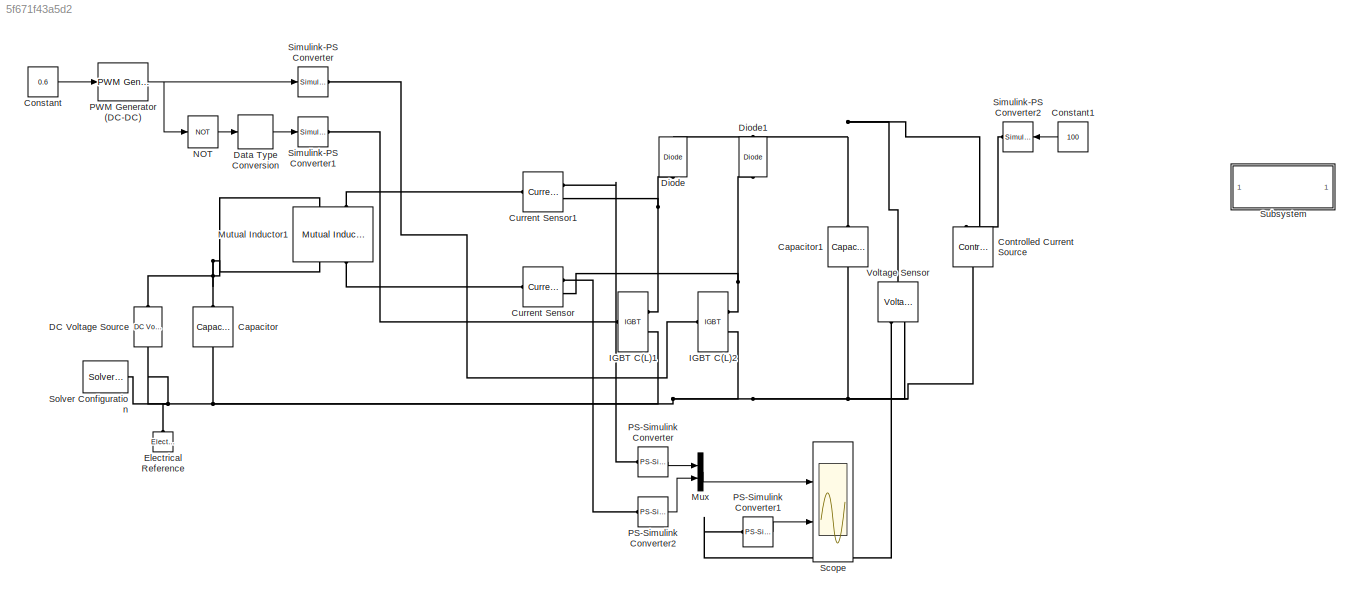
MODEL slx_5f671f43a5d2
KIND model
CONFIG AbsTol = 1e-3
CONFIG EnableMultiTasking = on
CONFIG FixedStep = auto
CONFIG MaxStep = auto
CONFIG MinStep = auto
CONFIG RelTol = 1e-3
CONFIG SampleTimeConstraint = Unconstrained
CONFIG Solver = VariableStepAuto
CONFIG SolverName = VariableStepAuto
CONFIG StartTime = 0.0
CONFIG StopTime = 1
BLOCK [Reference] Capacitor  REF=fl_lib/Electrical/Electrical Elements/Capacitor
  Ports = [0, 0, 0, 0, 0, 1, 1]
  SourceBlock = fl_lib/Electrical/Electrical Elements/Capacitor
  SourceProductBaseCode = SS
  SourceProductName = Simscape
  SourceType = Capacitor
BLOCK [Reference] Capacitor1  REF=fl_lib/Electrical/Electrical Elements/Capacitor
  Ports = [0, 0, 0, 0, 0, 1, 1]
  SourceBlock = fl_lib/Electrical/Electrical Elements/Capacitor
  SourceProductBaseCode = SS
  SourceProductName = Simscape
  SourceType = Capacitor
BLOCK [Constant] Constant
  Value = 0.6
BLOCK [Constant] Constant1
  Value = 100
BLOCK [Reference] Controlled Current Source  REF=fl_lib/Electrical/Electrical Sources/Controlled Current
Source
  Ports = [0, 0, 0, 0, 0, 1, 2]
  SourceBlock = fl_lib/Electrical/Electrical Sources/Controlled Current\nSource
  SourceProductBaseCode = SS
  SourceProductName = Simscape
  SourceType = Controlled Current\nSource
BLOCK [Reference] Current Sensor  REF=fl_lib/Electrical/Electrical Sensors/Current Sensor
  Ports = [0, 0, 0, 0, 0, 1, 2]
  SourceBlock = fl_lib/Electrical/Electrical Sensors/Current Sensor
  SourceProductBaseCode = SS
  SourceProductName = Simscape
  SourceType = Current Sensor
BLOCK [Reference] Current Sensor1  REF=fl_lib/Electrical/Electrical Sensors/Current Sensor
  Ports = [0, 0, 0, 0, 0, 1, 2]
  SourceBlock = fl_lib/Electrical/Electrical Sensors/Current Sensor
  SourceProductBaseCode = SS
  SourceProductName = Simscape
  SourceType = Current Sensor
BLOCK [Reference] DC Voltage Source  REF=fl_lib/Electrical/Electrical Sources/DC Voltage Source
  Ports = [0, 0, 0, 0, 0, 1, 1]
  SourceBlock = fl_lib/Electrical/Electrical Sources/DC Voltage Source
  SourceProductBaseCode = SS
  SourceProductName = Simscape
  SourceType = DC Voltage Source
BLOCK [DataTypeConversion] Data Type Conversion
  RndMeth = Floor
  SaturateOnIntegerOverflow = off
BLOCK [Reference] Diode  REF=elec_lib/Semiconductor
Devices/Diode
  Ports = [0, 0, 0, 0, 0, 1, 1]
  SourceBlock = elec_lib/Semiconductor\nDevices/Diode
  SourceProductBaseCode = SN
  SourceProductName = Simscape Electronics
  SourceType = Diode
BLOCK [Reference] Diode1  REF=elec_lib/Semiconductor
Devices/Diode
  Ports = [0, 0, 0, 0, 0, 1, 1]
  SourceBlock = elec_lib/Semiconductor\nDevices/Diode
  SourceProductBaseCode = SN
  SourceProductName = Simscape Electronics
  SourceType = Diode
BLOCK [Reference] Electrical Reference  REF=fl_lib/Electrical/Electrical Elements/Electrical Reference
  Ports = [0, 0, 0, 0, 0, 1]
  SourceBlock = fl_lib/Electrical/Electrical Elements/Electrical Reference
  SourceProductBaseCode = SS
  SourceProductName = Simscape
  SourceType = Electrical Reference
BLOCK [Reference] IGBT C(L)1  REF=pe_lib/Semiconductors/Fundamental
Components/IGBT
  Ports = [0, 0, 0, 0, 0, 1, 2]
  SourceBlock = pe_lib/Semiconductors/Fundamental\nComponents/IGBT
  SourceProductBaseCode = PS
  SourceProductName = Simscape Power Systems
  SourceType = IGBT
BLOCK [Reference] IGBT C(L)2  REF=pe_lib/Semiconductors/Fundamental
Components/IGBT
  Ports = [0, 0, 0, 0, 0, 1, 2]
  SourceBlock = pe_lib/Semiconductors/Fundamental\nComponents/IGBT
  SourceProductBaseCode = PS
  SourceProductName = Simscape Power Systems
  SourceType = IGBT
BLOCK [Reference] Mutual Inductor1  REF=elec_lib/Passive Devices/Mutual Inductor
  Ports = [0, 0, 0, 0, 0, 2, 2]
  SourceBlock = elec_lib/Passive Devices/Mutual Inductor
  SourceProductBaseCode = SN
  SourceProductName = Simscape Electronics
  SourceType = Mutual Inductor
BLOCK [Mux] Mux
  DisplayOption = bar
  Inputs = 2
  Ports = [2, 1]
BLOCK [Logic] NOT
  AllPortsSameDT = off
  IconShape = distinctive
  Operator = NOT
  OutDataTypeStr = boolean
  Ports = [1, 1]
BLOCK [Reference] PS-Simulink Converter  REF=nesl_utility/PS-Simulink
Converter
  Ports = [0, 1, 0, 0, 0, 1]
  SourceBlock = nesl_utility/PS-Simulink\nConverter
  SourceProductBaseCode = SS
  SourceProductName = Simscape
  SourceType = PS-Simulink\nConverter
BLOCK [Reference] PS-Simulink Converter1  REF=nesl_utility/PS-Simulink
Converter
  Ports = [0, 1, 0, 0, 0, 1]
  SourceBlock = nesl_utility/PS-Simulink\nConverter
  SourceProductBaseCode = SS
  SourceProductName = Simscape
  SourceType = PS-Simulink\nConverter
BLOCK [Reference] PS-Simulink Converter2  REF=nesl_utility/PS-Simulink
Converter
  Ports = [0, 1, 0, 0, 0, 1]
  SourceBlock = nesl_utility/PS-Simulink\nConverter
  SourceProductBaseCode = SS
  SourceProductName = Simscape
  SourceType = PS-Simulink\nConverter
BLOCK [Reference] PWM Generator (DC-DC)  REF=powerlib_meascontrol/Pulse & Signal
Generators/PWM Generator
(DC-DC)
  Ports = [1, 1]
  SourceBlock = powerlib_meascontrol/Pulse & Signal\nGenerators/PWM Generator\n(DC-DC)
  SourceProductBaseCode = PS
  SourceProductName = Simscape Power Systems
  SourceType = PWM Generator (DC-DC)
BLOCK [Scope] Scope
  Floating = off
  NumInputPorts = 2
  Ports = [2]
  ScopeSpecificationString = Simulink.scopes.TimeScopeBlockCfg('CurrentConfiguration', extmgr.ConfigurationSet(extmgr.Configuration('Core','General UI',true),extmgr.Configuration('Core','Source UI',true),extmgr.Configuration('Sources','WiredSimulink',true,'DataLoggingSaveFormat','Array','DataLoggingDecimation','1','DataLoggingDecimateData',true),extmgr.Configuration('Visuals','Time Domain',true,'SerializedDisplays',{struct('M...<+2323ch>
BLOCK [Reference] Simulink-PS Converter  REF=nesl_utility/Simulink-PS
Converter
  Ports = [1, 0, 0, 0, 0, 0, 1]
  SourceBlock = nesl_utility/Simulink-PS\nConverter
  SourceProductBaseCode = SS
  SourceProductName = Simscape
  SourceType = Simulink-PS\nConverter
BLOCK [Reference] Simulink-PS Converter1  REF=nesl_utility/Simulink-PS
Converter
  Ports = [1, 0, 0, 0, 0, 0, 1]
  SourceBlock = nesl_utility/Simulink-PS\nConverter
  SourceProductBaseCode = SS
  SourceProductName = Simscape
  SourceType = Simulink-PS\nConverter
BLOCK [Reference] Simulink-PS Converter2  REF=nesl_utility/Simulink-PS
Converter
  Ports = [1, 0, 0, 0, 0, 0, 1]
  SourceBlock = nesl_utility/Simulink-PS\nConverter
  SourceProductBaseCode = SS
  SourceProductName = Simscape
  SourceType = Simulink-PS\nConverter
BLOCK [Reference] Solver Configuration  REF=nesl_utility/Solver
Configuration
  Ports = [0, 0, 0, 0, 0, 0, 1]
  SourceBlock = nesl_utility/Solver\nConfiguration
  SourceProductBaseCode = SS
  SourceProductName = Simscape
  SourceType = Solver\nConfiguration
BLOCK [SubSystem] Subsystem
  OpenFcn = open_system('simscape')
  Ports = []
  RequestExecContextInheritance = off
  ShowPortLabels = none
BLOCK [Reference] Voltage Sensor  REF=fl_lib/Electrical/Electrical Sensors/Voltage Sensor
  Ports = [0, 0, 0, 0, 0, 1, 2]
  SourceBlock = fl_lib/Electrical/Electrical Sensors/Voltage Sensor
  SourceProductBaseCode = SS
  SourceProductName = Simscape
  SourceType = Voltage Sensor
LINE Constant1:1 -> Simulink-PS Converter2:1
LINE Constant:1 -> PWM Generator (DC-DC):1
LINE Data Type Conversion:1 -> Simulink-PS Converter1:1
LINE Mux:1 -> Scope:1
LINE NOT:1 -> Data Type Conversion:1
LINE PS-Simulink Converter1:1 -> Scope:2
LINE PS-Simulink Converter2:1 -> Mux:2
LINE PS-Simulink Converter:1 -> Mux:1
NET PWM Generator (DC-DC):1 -> NOT:1, Simulink-PS Converter:1
PNET net1: Capacitor1:LConn1 -- Controlled Current Source:RConn2 -- Diode1:RConn1 -- Diode:RConn1 -- Voltage Sensor:LConn1
PNET net2: Capacitor1:RConn1 -- Capacitor:RConn1 -- Controlled Current Source:LConn1 -- DC Voltage Source:RConn1 -- Electrical Reference:LConn1 -- IGBT C(L)1:RConn2 -- IGBT C(L)2:RConn2 -- Solver Configuration:RConn1 -- Voltage Sensor:RConn2
PNET net3: Capacitor:LConn1 -- DC Voltage Source:LConn1 -- Mutual Inductor1:LConn1 -- Mutual Inductor1:RConn1
PLINE Controlled Current Source:RConn1 -- Simulink-PS Converter2:RConn1
PLINE Current Sensor1:LConn1 -- Mutual Inductor1:RConn2
PLINE Current Sensor1:RConn1 -- PS-Simulink Converter:LConn1
PNET net4: Current Sensor1:RConn2 -- Diode:LConn1 -- IGBT C(L)1:RConn1
PLINE Current Sensor:LConn1 -- Mutual Inductor1:LConn2
PLINE Current Sensor:RConn1 -- PS-Simulink Converter2:LConn1
PNET net5: Current Sensor:RConn2 -- Diode1:LConn1 -- IGBT C(L)2:RConn1
PLINE IGBT C(L)1:LConn1 -- Simulink-PS Converter1:RConn1
PLINE IGBT C(L)2:LConn1 -- Simulink-PS Converter:RConn1
PLINE PS-Simulink Converter1:LConn1 -- Voltage Sensor:RConn1
note: NET lines group one-source signal fan-out (src -> all destinations, sorted); 1:1 wires keep LINE; PNET lines group multi-terminal physical nets as a canonical sorted terminal list (undirected conserving connections); 2-terminal nets keep the pairwise PLINE form
